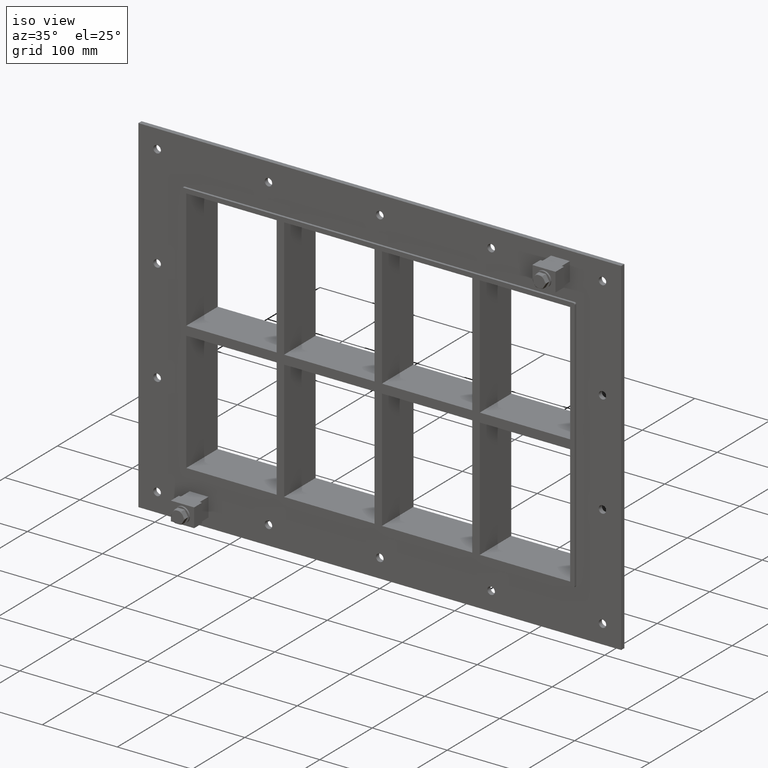
[diagram: clean part render]
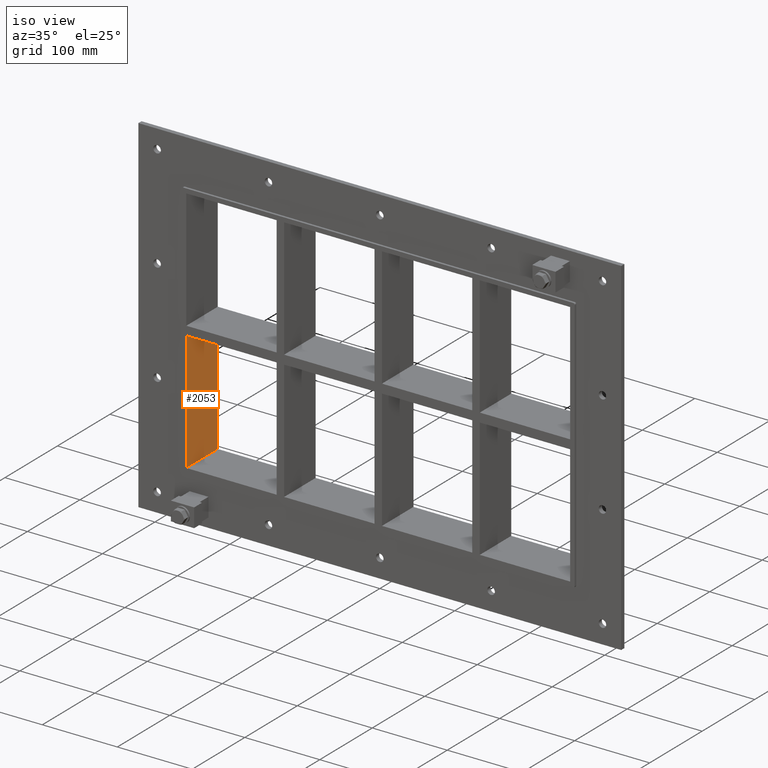
[diagram: same view with one face highlighted and labeled with its STEP entity id]
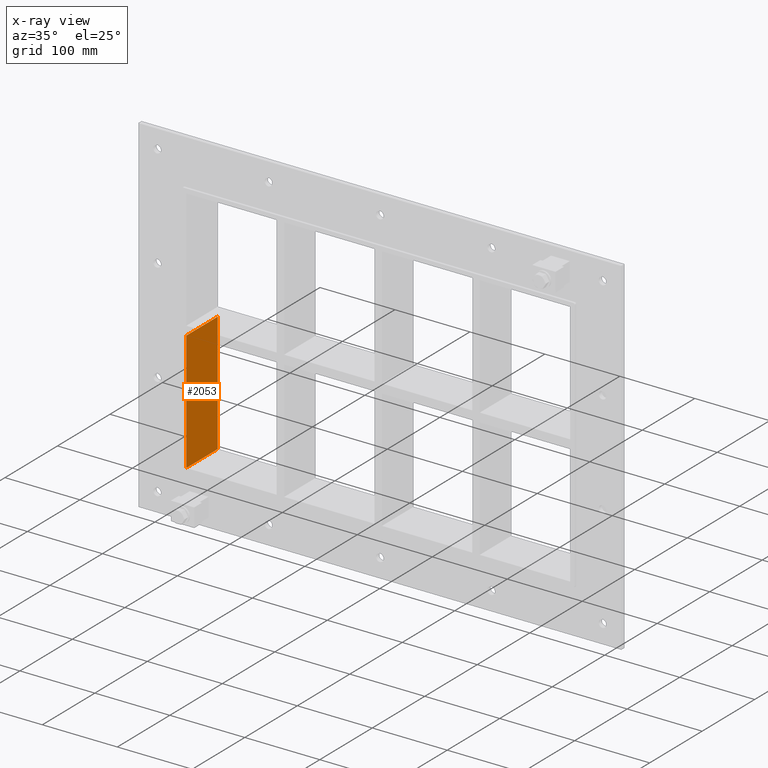
[diagram: x-ray of the same camera — body ghosted, the highlighted face saturated]
A machine part, iso view. The second image highlights one B-rep face of the part: STEP entity #2053.
The next image is the same camera in x-ray: the body ghosted, the highlighted face saturated — about 0% of this face is hidden behind the body in this view.
In plain terms, the highlighted planar face has unit normal (-1, 0, 0).
Its self-contained STEP definition (entity closure, byte-faithful):
#1088=CARTESIAN_POINT('',(-255.99999999999866,-3.0,-6.000000000011596));
#1089=VERTEX_POINT('',#1088);
#1104=CARTESIAN_POINT('',(-256.0,-3.0,-165.50000000000009));
#1105=VERTEX_POINT('',#1104);
#1112=CARTESIAN_POINT('',(-256.00000000000006,-3.0,-165.50000000000009));
#1113=DIRECTION('',(0.0,0.0,1.0));
#1114=VECTOR('',#1113,159.49999999998849);
#1115=LINE('',#1112,#1114);
#1116=EDGE_CURVE('',#1105,#1089,#1115,.T.);
#1334=CARTESIAN_POINT('',(-255.99999999999866,57.0,-6.000000000011596));
#1335=VERTEX_POINT('',#1334);
#1336=CARTESIAN_POINT('',(-256.0,57.0,-165.50000000000009));
#1337=VERTEX_POINT('',#1336);
#1338=CARTESIAN_POINT('',(-256.00000000000006,57.0,-6.000000000011596));
#1339=DIRECTION('',(0.0,0.0,-1.0));
#1340=VECTOR('',#1339,159.49999999998849);
#1341=LINE('',#1338,#1340);
#1342=EDGE_CURVE('',#1335,#1337,#1341,.T.);
#1498=CARTESIAN_POINT('',(-256.00000000000006,57.000000000000007,-6.000000000011605));
#1499=DIRECTION('',(0.0,-1.0,0.0));
#1500=VECTOR('',#1499,60.000000000000007);
#1501=LINE('',#1498,#1500);
#1502=EDGE_CURVE('',#1335,#1089,#1501,.T.);
#1648=CARTESIAN_POINT('',(-256.00000000000006,-3.0,-165.50000000000009));
#1649=DIRECTION('',(0.0,1.0,0.0));
#1650=VECTOR('',#1649,60.0);
#1651=LINE('',#1648,#1650);
#1652=EDGE_CURVE('',#1105,#1337,#1651,.T.);
#2042=CARTESIAN_POINT('',(-256.00000000000006,0.0,-165.50000000000009));
#2043=DIRECTION('',(-1.0,0.0,0.0));
#2044=DIRECTION('',(0.0,0.0,1.0));
#2045=AXIS2_PLACEMENT_3D('',#2042,#2043,#2044);
#2046=PLANE('',#2045);
#2047=ORIENTED_EDGE('',*,*,#1502,.T.);
#2048=ORIENTED_EDGE('',*,*,#1116,.F.);
#2049=ORIENTED_EDGE('',*,*,#1652,.T.);
#2050=ORIENTED_EDGE('',*,*,#1342,.F.);
#2051=EDGE_LOOP('',(#2047,#2048,#2049,#2050));
#2052=FACE_OUTER_BOUND('',#2051,.T.);
#2053=ADVANCED_FACE('',(#2052),#2046,.F.);